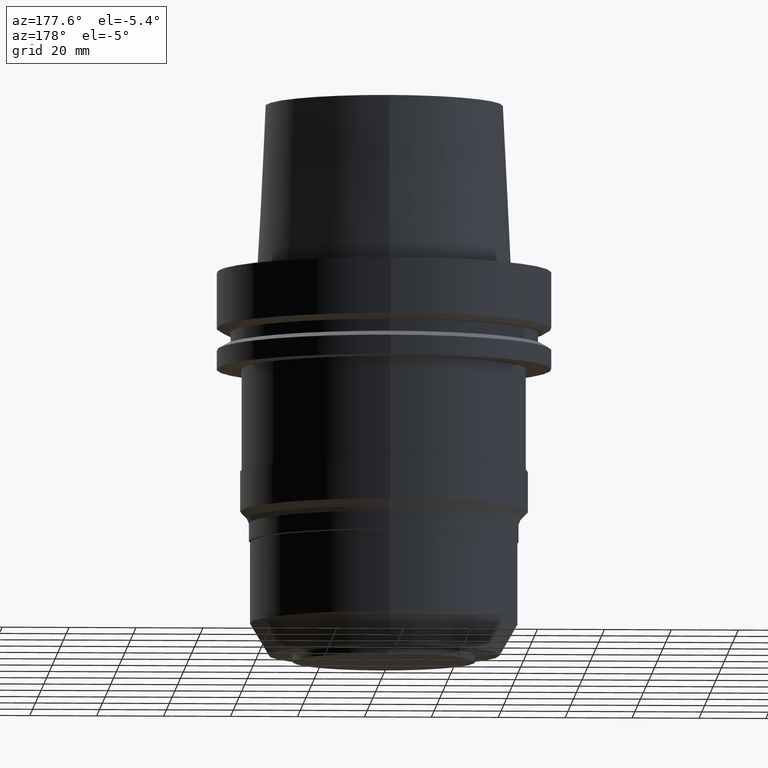
[diagram: clean part render]
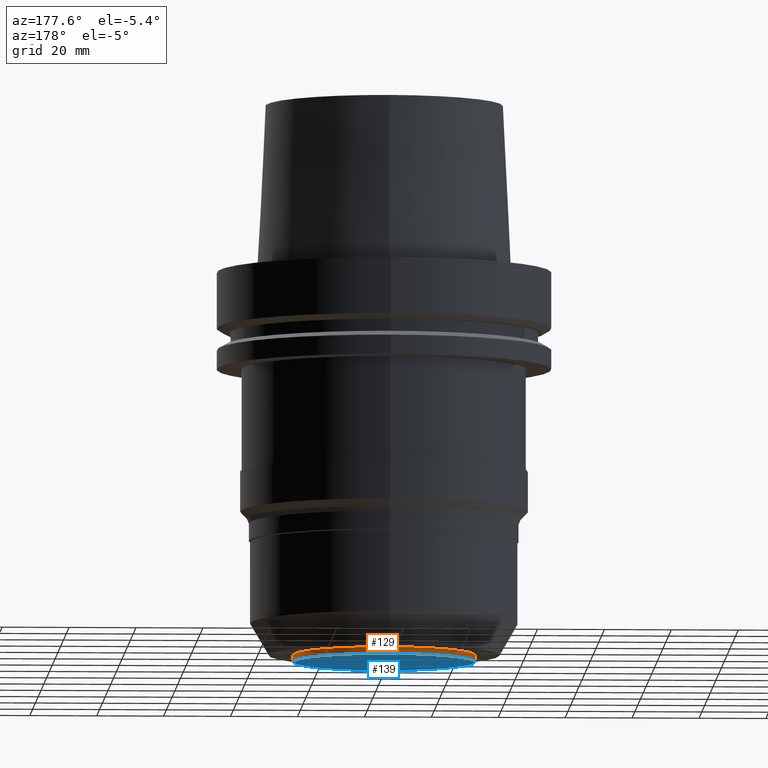
[diagram: same view with the hole feature highlighted: cylindrical wall and planar end face, labeled with their STEP entity ids]
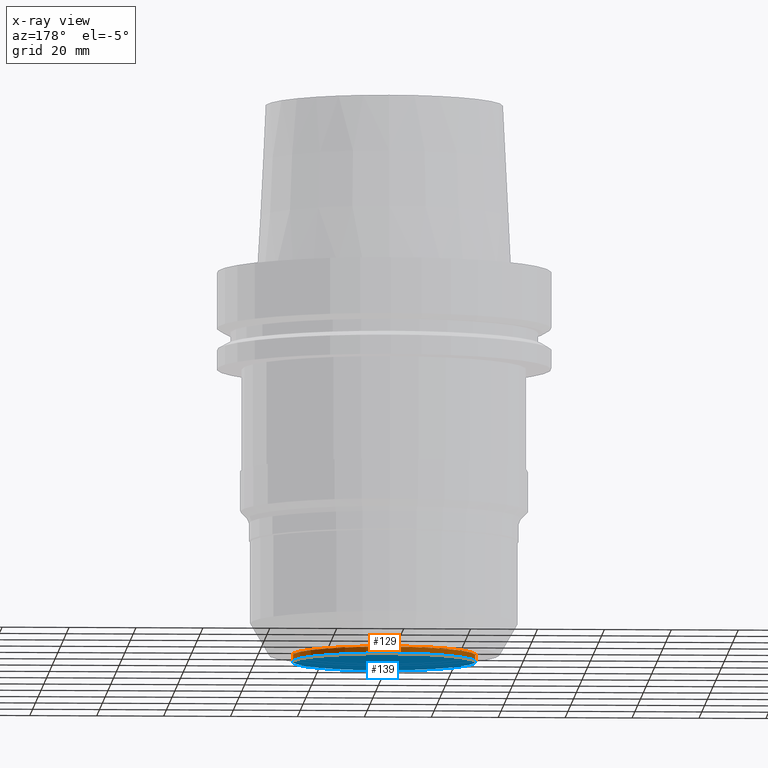
[diagram: x-ray of the same camera — body ghosted, the hole faces saturated]
A machine part, auxiliary view. The highlighted faces form one hole feature of diameter 54.672 mm: the cylindrical wall (entity #129, orange) and its adjacent planar end face (entity #139, blue) — they share a circular edge in the B-rep.
The next image is the same camera in x-ray (body ghosted, the hole faces saturated) — the bore reads through the body.
Wall:
#76=EDGE_CURVE('Unnamed[1]',#212,#212,#213,.T.);
#96=EDGE_CURVE('Unnamed[1]',#244,#244,#245,.T.);
#129=ADVANCED_FACE('Unnamed[1]',(#297,#298),#299,.T.);
#212=VERTEX_POINT('',#403);
#213=CIRCLE('',#404,27.336);
#244=VERTEX_POINT('',#443);
#245=CIRCLE('',#444,27.336);
#297=FACE_BOUND('',#508,.T.);
#298=FACE_BOUND('',#509,.T.);
#299=CYLINDRICAL_SURFACE('',#510,27.336);
#403=CARTESIAN_POINT('',(7.14581407302481E-015,27.336,-116.7));
#404=AXIS2_PLACEMENT_3D('',#629,#630,#631);
#443=CARTESIAN_POINT('',(7.02334939311008E-015,27.336,-114.7));
#444=AXIS2_PLACEMENT_3D('',#665,#666,#667);
#508=EDGE_LOOP('',(#726));
#509=EDGE_LOOP('',(#727));
#510=AXIS2_PLACEMENT_3D('',#728,#729,#730);
#629=CARTESIAN_POINT('',(7.14581407302481E-015,1.42916281460496E-014,-116.7));
#630=DIRECTION('',(6.12323399573677E-017,1.22464679914713E-016,-1.0));
#631=DIRECTION('',(-1.23259516440796E-032,1.0,1.22464679914713E-016));
#665=CARTESIAN_POINT('',(7.02334939311008E-015,1.40466987862202E-014,-114.7));
#666=DIRECTION('',(6.12323399573677E-017,1.22464679914713E-016,-1.0));
#667=DIRECTION('',(-1.23259516440796E-032,1.0,1.22464679914713E-016));
#726=ORIENTED_EDGE('',*,*,#76,.F.);
#727=ORIENTED_EDGE('',*,*,#96,.T.);
#728=CARTESIAN_POINT('',(7.08458173306744E-015,1.41691634661349E-014,-115.7));
#729=DIRECTION('',(6.12323399573677E-017,1.22464679914713E-016,-1.0));
#730=DIRECTION('',(-1.23259516440796E-032,1.0,1.22464679914713E-016));
End face:
#76=EDGE_CURVE('Unnamed[1]',#212,#212,#213,.T.);
#139=ADVANCED_FACE('Unnamed[1]',(#313),#314,.T.);
#212=VERTEX_POINT('',#403);
#213=CIRCLE('',#404,27.336);
#313=FACE_OUTER_BOUND('',#528,.T.);
#314=PLANE('',#529);
#403=CARTESIAN_POINT('',(7.14581407302481E-015,27.336,-116.7));
#404=AXIS2_PLACEMENT_3D('',#629,#630,#631);
#528=EDGE_LOOP('',(#744));
#529=AXIS2_PLACEMENT_3D('',#745,#746,#747);
#629=CARTESIAN_POINT('',(7.14581407302481E-015,1.42916281460496E-014,-116.7));
#630=DIRECTION('',(6.12323399573677E-017,1.22464679914713E-016,-1.0));
#631=DIRECTION('',(-1.23259516440796E-032,1.0,1.22464679914713E-016));
#744=ORIENTED_EDGE('',*,*,#76,.T.);
#745=CARTESIAN_POINT('',(7.14581407302481E-015,13.668,-116.7));
#746=DIRECTION('',(6.12323399573677E-017,1.22464679914735E-016,-1.0));
#747=DIRECTION('',(-1.23259516440783E-032,1.0,1.22464679914735E-016));